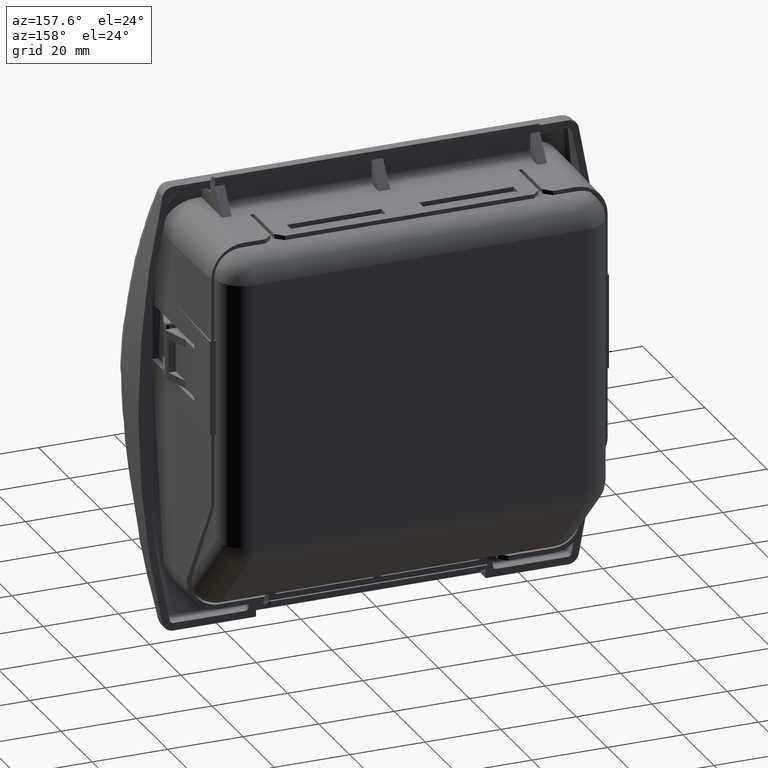
[diagram: clean part render]
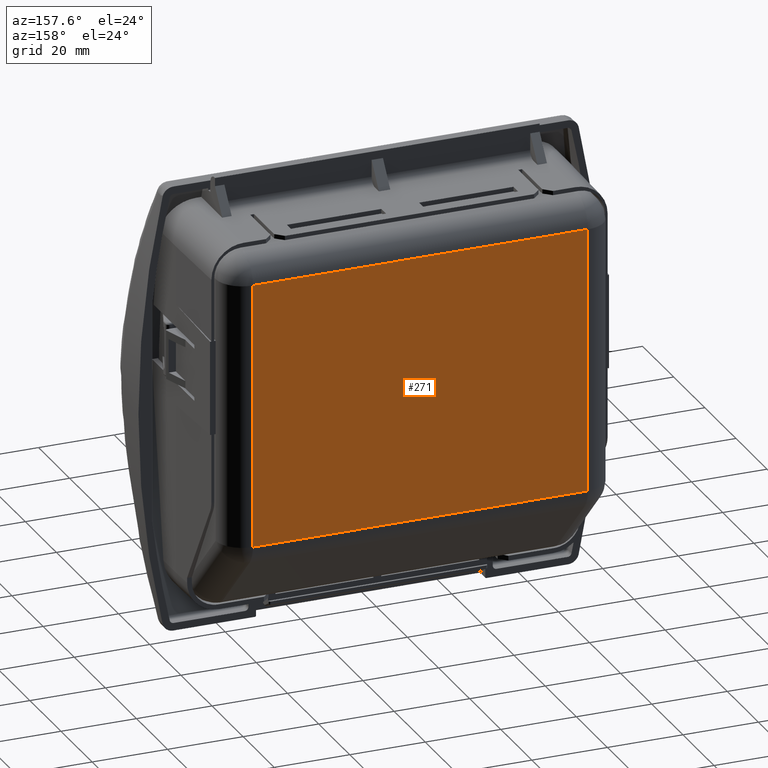
[diagram: same view with one face highlighted and labeled with its STEP entity id]
A machine part, auxiliary view. The second image highlights one B-rep face of the part: STEP entity #271.
In plain terms, the highlighted planar face has unit normal (0, 1, 0).
Its self-contained STEP definition (entity closure, byte-faithful):
#271=ADVANCED_FACE('',(#2079),#2078,.T.);
#2078=PLANE('',#8688);
#2079=FACE_OUTER_BOUND('',#8689,.T.);
#8685=CARTESIAN_POINT('',(-5.32200000000E+001,3.70000000000E+001,-3.38084886697E+001));
#8686=DIRECTION('',(0.00000000000E+000,1.00000000000E+000,0.00000000000E+000));
#8687=DIRECTION('',(0.00000000000E+000,-0.00000000000E+000,1.00000000000E+000));
#8688=AXIS2_PLACEMENT_3D('',#8685,#8686,#8687);
#8689=EDGE_LOOP('',(#15629,#15630,#15631,#15632));
#15629=ORIENTED_EDGE('',*,*,#18951,.T.);
#15630=ORIENTED_EDGE('',*,*,#18824,.F.);
#15631=ORIENTED_EDGE('',*,*,#18952,.T.);
#15632=ORIENTED_EDGE('',*,*,#18953,.T.);
#18824=EDGE_CURVE('',#21774,#21787,#21794,.T.);
#18951=EDGE_CURVE('',#22618,#21787,#22619,.T.);
#18952=EDGE_CURVE('',#21774,#22625,#22626,.T.);
#18953=EDGE_CURVE('',#22625,#22618,#22632,.T.);
#21774=VERTEX_POINT('',#33055);
#21787=VERTEX_POINT('',#33064);
#21794=LINE('',#33069,#33070);
#22618=VERTEX_POINT('',#33553);
#22619=LINE('',#33554,#33555);
#22625=VERTEX_POINT('',#33557);
#22626=LINE('',#33558,#33559);
#22632=LINE('',#33561,#33562);
#33055=CARTESIAN_POINT('',(4.43500000000E+001,3.70000000000E+001,-2.67986260634E+001));
#33064=CARTESIAN_POINT('',(4.43500000000E+001,3.70000000000E+001,4.33000000000E+001));
#33069=CARTESIAN_POINT('',(4.43500000000E+001,3.70000000000E+001,-2.67986260634E+001));
#33070=VECTOR('',#33071,7.00986260634E+001);
#33071=DIRECTION('',(0.00000000000E+000,0.00000000000E+000,1.00000000000E+000));
#33553=CARTESIAN_POINT('',(-4.43500000000E+001,3.70000000000E+001,4.33000000000E+001));
#33554=CARTESIAN_POINT('',(-4.43500000000E+001,3.70000000000E+001,4.33000000000E+001));
#33555=VECTOR('',#33556,8.87000000000E+001);
#33556=DIRECTION('',(1.00000000000E+000,0.00000000000E+000,0.00000000000E+000));
#33557=CARTESIAN_POINT('',(-4.43500000000E+001,3.70000000000E+001,-2.67986260634E+001));
#33558=CARTESIAN_POINT('',(4.43500000000E+001,3.70000000000E+001,-2.67986260634E+001));
#33559=VECTOR('',#33560,8.87000000000E+001);
#33560=DIRECTION('',(-1.00000000000E+000,0.00000000000E+000,0.00000000000E+000));
#33561=CARTESIAN_POINT('',(-4.43500000000E+001,3.70000000000E+001,-2.67986260634E+001));
#33562=VECTOR('',#33563,7.00986260634E+001);
#33563=DIRECTION('',(0.00000000000E+000,0.00000000000E+000,1.00000000000E+000));